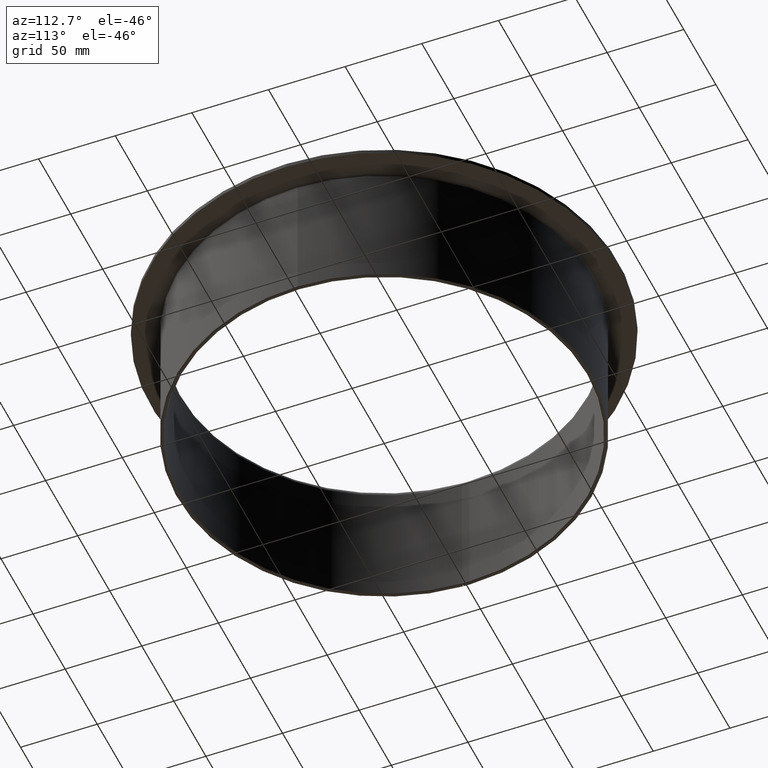
[diagram: clean part render]
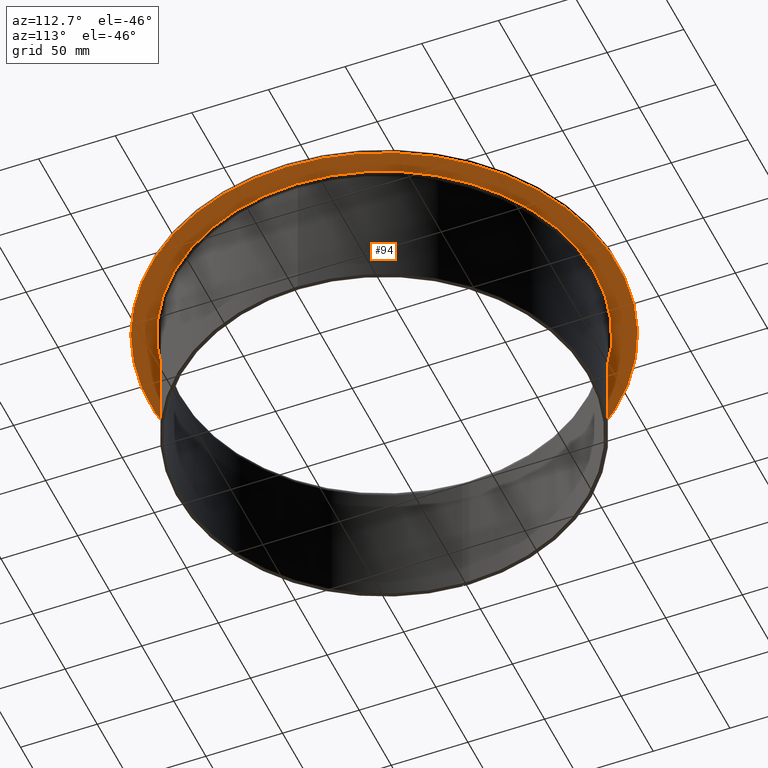
[diagram: same view with one face highlighted and labeled with its STEP entity id]
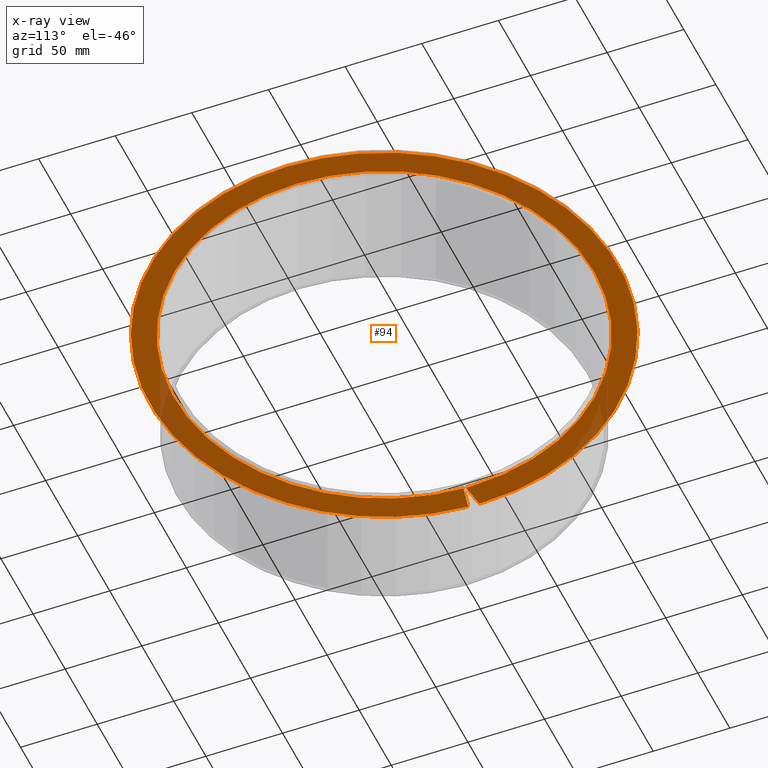
[diagram: x-ray of the same camera — body ghosted, the highlighted face saturated]
A machine part, auxiliary view. The second image highlights one B-rep face of the part: STEP entity #94.
The next image is the same camera in x-ray: the body ghosted, the highlighted face saturated — about 6% of this face is hidden behind the body in this view.
In plain terms, the highlighted planar face has unit normal (-0, 0, -1).
Its self-contained STEP definition (entity closure, byte-faithful):
#94=ADVANCED_FACE('',(#140),#141,.T.);
#140=FACE_OUTER_BOUND('',#192,.T.);
#141=PLANE('',#193);
#192=EDGE_LOOP('',(#349,#350,#351,#352,#353,#354,#355,#356));
#193=AXIS2_PLACEMENT_3D('',#357,#358,#359);
#349=ORIENTED_EDGE('',*,*,#469,.T.);
#350=ORIENTED_EDGE('',*,*,#470,.T.);
#351=ORIENTED_EDGE('',*,*,#438,.T.);
#352=ORIENTED_EDGE('',*,*,#435,.T.);
#353=ORIENTED_EDGE('',*,*,#462,.T.);
#354=ORIENTED_EDGE('',*,*,#444,.F.);
#355=ORIENTED_EDGE('',*,*,#468,.F.);
#356=ORIENTED_EDGE('',*,*,#442,.F.);
#357=CARTESIAN_POINT('',(-144.75,2.6892337321503E-013,87.5));
#358=DIRECTION('',(-1.1460366705808E-015,6.12323399573698E-017,-1.0));
#359=DIRECTION('',(1.0,-1.89882151931499E-015,-1.1460366705808E-015));
#435=EDGE_CURVE('',#515,#517,#519,.T.);
#438=EDGE_CURVE('',#520,#515,#523,.T.);
#442=EDGE_CURVE('',#529,#525,#531,.T.);
#444=EDGE_CURVE('',#532,#535,#536,.T.);
#462=EDGE_CURVE('',#517,#535,#563,.T.);
#468=EDGE_CURVE('',#525,#532,#569,.T.);
#469=EDGE_CURVE('',#529,#570,#571,.T.);
#470=EDGE_CURVE('',#570,#520,#572,.T.);
#515=VERTEX_POINT('',#629);
#517=VERTEX_POINT('',#631);
#519=CIRCLE('',#646,137.0);
#520=VERTEX_POINT('',#647);
#523=CIRCLE('',#650,137.0);
#525=VERTEX_POINT('',#652);
#529=VERTEX_POINT('',#657);
#531=CIRCLE('',#660,152.5);
#532=VERTEX_POINT('',#661);
#535=VERTEX_POINT('',#665);
#536=CIRCLE('',#666,152.5);
#563=LINE('',#743,#744);
#569=CIRCLE('',#752,152.5);
#570=VERTEX_POINT('',#753);
#571=LINE('',#754,#755);
#572=CIRCLE('',#756,137.0);
#629=CARTESIAN_POINT('',(-137.0,2.73083148957993E-013,87.5));
#631=CARTESIAN_POINT('',(-136.941926852777,-3.98856739300774,87.5));
#646=AXIS2_PLACEMENT_3D('',#819,#820,#821);
#647=CARTESIAN_POINT('',(137.0,-2.80749269630951E-013,87.5));
#650=AXIS2_PLACEMENT_3D('',#828,#829,#830);
#652=CARTESIAN_POINT('',(152.5,-3.0937191903528E-013,87.5));
#657=CARTESIAN_POINT('',(-152.243686023932,-8.83798992115919,87.5));
#660=AXIS2_PLACEMENT_3D('',#836,#837,#838);
#661=CARTESIAN_POINT('',(-152.5,3.02103808572045E-013,87.5));
#665=CARTESIAN_POINT('',(-152.489335068405,-1.80352166492205,87.5));
#666=AXIS2_PLACEMENT_3D('',#840,#841,#842);
#743=CARTESIAN_POINT('',(-148.686554641929,-2.33796760024947,87.5));
#744=VECTOR('',#873,10.0);
#752=AXIS2_PLACEMENT_3D('',#885,#886,#887);
#753=CARTESIAN_POINT('',(-136.886571598268,-5.57373448166975,87.5));
#754=CARTESIAN_POINT('',(-147.629400508279,-7.85719325738899,87.5));
#755=VECTOR('',#888,10.0);
#756=AXIS2_PLACEMENT_3D('',#889,#890,#891);
#819=CARTESIAN_POINT('',(-7.04575888216064E-030,-3.7105956565641E-015,87.5));
#820=DIRECTION('',(-1.16269284789061E-031,-6.12323399573677E-017,1.0));
#821=DIRECTION('',(-1.0,1.88237377125682E-015,-1.00713410063058E-033));
#828=CARTESIAN_POINT('',(-7.04575888216064E-030,-3.7105956565641E-015,87.5));
#829=DIRECTION('',(-1.16269284789061E-031,-6.12323399573677E-017,1.0));
#830=DIRECTION('',(-1.0,1.88237377125682E-015,-1.00713410063058E-033));
#836=CARTESIAN_POINT('',(-7.04575888216064E-030,-3.7105956565641E-015,87.5));
#837=DIRECTION('',(-1.16269284789061E-031,-6.12323399573676E-017,1.0));
#838=DIRECTION('',(-1.0,1.88237377125682E-015,-1.00713410063058E-033));
#840=CARTESIAN_POINT('',(-7.04575888216064E-030,-3.7105956565641E-015,87.5));
#841=DIRECTION('',(-1.16269284789061E-031,-6.12323399573676E-017,1.0));
#842=DIRECTION('',(-1.0,1.88237377125682E-015,-1.00713410063058E-033));
#873=DIRECTION('',(-0.990268068741547,0.13917310096023,1.14340541511396E-015));
#885=CARTESIAN_POINT('',(-7.04575888216064E-030,-3.7105956565641E-015,87.5));
#886=DIRECTION('',(-1.16269284789061E-031,-6.12323399573676E-017,1.0));
#887=DIRECTION('',(-1.0,1.88237377125682E-015,-1.00713410063058E-033));
#888=DIRECTION('',(0.97814760073384,0.207911690817597,-1.10826210034836E-015));
#889=CARTESIAN_POINT('',(-7.04575888216064E-030,-3.7105956565641E-015,87.5));
#890=DIRECTION('',(-1.16269284789061E-031,-6.12323399573677E-017,1.0));
#891=DIRECTION('',(-1.0,1.88237377125682E-015,-1.00713410063058E-033));